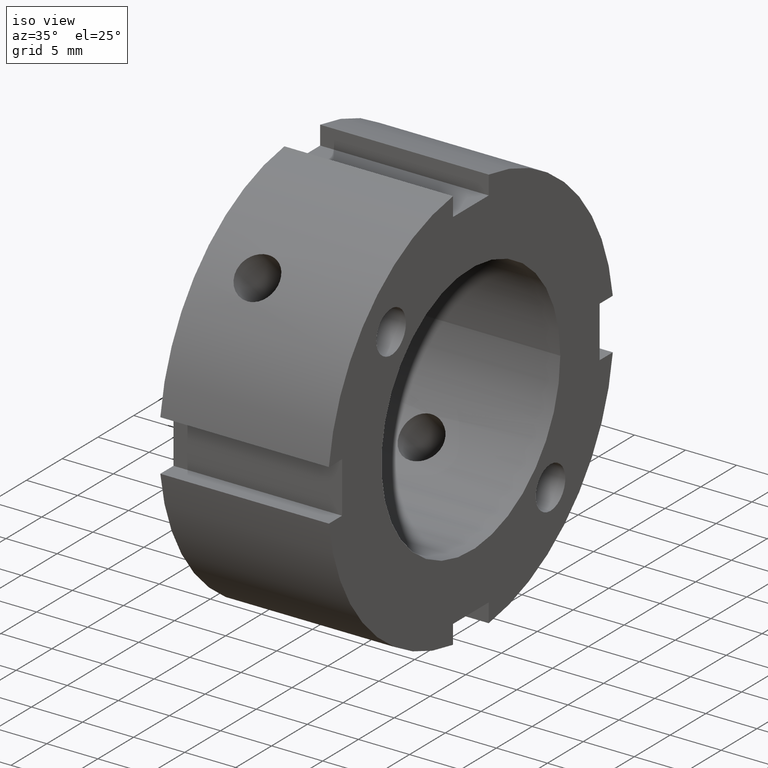
[diagram: clean part render]
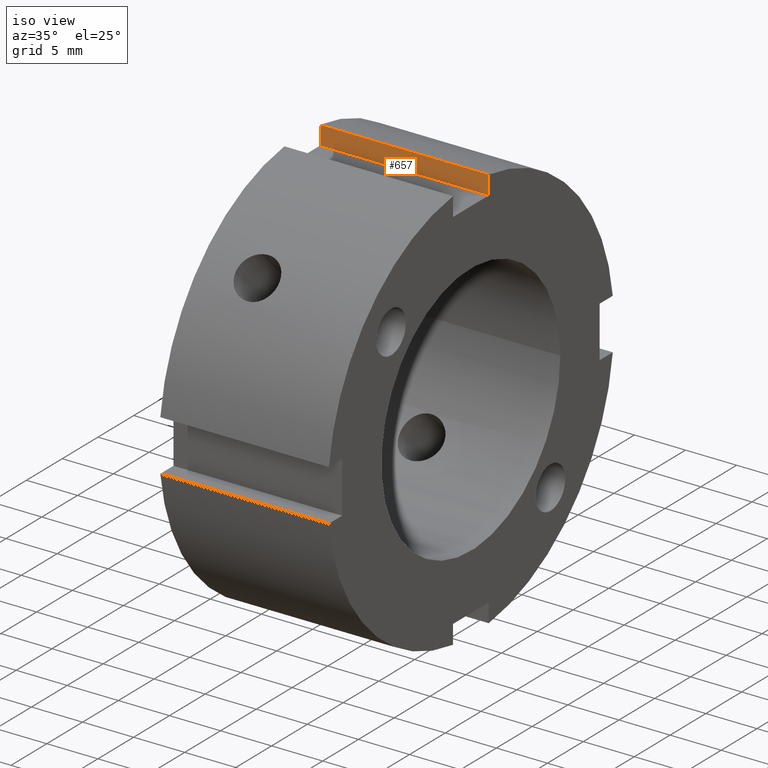
[diagram: same view with one face highlighted and labeled with its STEP entity id]
A machine part, iso view. The second image highlights one B-rep face of the part: STEP entity #657.
In plain terms, the highlighted planar face has unit normal (0, 1, 0).
Its self-contained STEP definition (entity closure, byte-faithful):
#618=CARTESIAN_POINT('',(16.999999999999996,2.5,18.0));
#619=DIRECTION('',(0.0,1.0,0.0));
#620=DIRECTION('',(-1.0,0.0,0.0));
#621=AXIS2_PLACEMENT_3D('',#618,#619,#620);
#622=PLANE('',#621);
#623=CARTESIAN_POINT('',(0.499999999999998,2.5,18.0));
#624=VERTEX_POINT('',#623);
#625=CARTESIAN_POINT('',(0.499999999999998,2.5,19.843134832984425));
#626=VERTEX_POINT('',#625);
#627=CARTESIAN_POINT('',(0.499999999999998,2.5,18.0));
#628=DIRECTION('',(0.0,0.0,1.0));
#629=VECTOR('',#628,1.843134832984426);
#630=LINE('',#627,#629);
#631=EDGE_CURVE('',#624,#626,#630,.T.);
#632=ORIENTED_EDGE('',*,*,#631,.F.);
#633=CARTESIAN_POINT('',(16.999999999999996,2.5,18.0));
#634=VERTEX_POINT('',#633);
#635=CARTESIAN_POINT('',(16.999999999999996,2.5,18.0));
#636=DIRECTION('',(-1.0,0.0,0.0));
#637=VECTOR('',#636,16.5);
#638=LINE('',#635,#637);
#639=EDGE_CURVE('',#634,#624,#638,.T.);
#640=ORIENTED_EDGE('',*,*,#639,.F.);
#641=CARTESIAN_POINT('',(16.999999999999996,2.5,19.843134832984425));
#642=VERTEX_POINT('',#641);
#643=CARTESIAN_POINT('',(16.999999999999996,2.5,19.843134832984425));
#644=DIRECTION('',(0.0,0.0,-1.0));
#645=VECTOR('',#644,1.843134832984426);
#646=LINE('',#643,#645);
#647=EDGE_CURVE('',#642,#634,#646,.T.);
#648=ORIENTED_EDGE('',*,*,#647,.F.);
#649=CARTESIAN_POINT('',(0.5,2.5,19.843134832984425));
#650=DIRECTION('',(1.0,0.0,0.0));
#651=VECTOR('',#650,16.5);
#652=LINE('',#649,#651);
#653=EDGE_CURVE('',#626,#642,#652,.T.);
#654=ORIENTED_EDGE('',*,*,#653,.F.);
#655=EDGE_LOOP('',(#632,#640,#648,#654));
#656=FACE_OUTER_BOUND('',#655,.T.);
#657=ADVANCED_FACE('',(#656),#622,.F.);